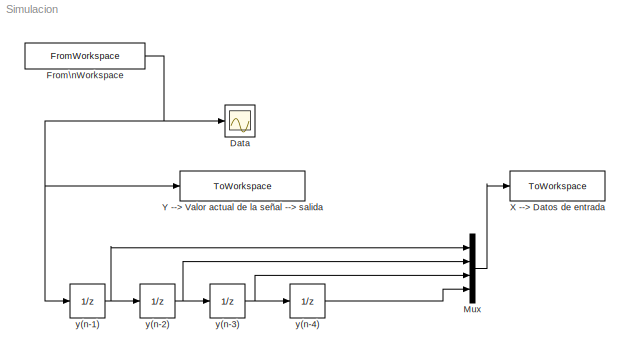
MODEL Simulacion
KIND model
BLOCK [Scope] Data
  Floating = off
  NumInputPorts = 1
  Ports = [1]
  SID = 1
  ScopeSpecificationString = Simulink.scopes.TimeScopeBlockCfg('CurrentConfiguration', extmgr.ConfigurationSet(extmgr.Configuration('Core','General UI',true),extmgr.Configuration('Core','Source UI',true),extmgr.Configuration('Sources','WiredSimulink',true,'DataLoggingSaveFormat','StructureWithTime','DataLoggingLimitDataPoints',true,'DataLoggingDecimation','1','DataLoggingDecimateData',true),extmgr.Configuration('Visuals','Tim...<+1693ch>
BLOCK [FromWorkspace] From\nWorkspace
  SID = 2
  SampleTime = 1
  VariableName = ecgData
  ZeroCross = off
BLOCK [Mux] Mux
  DisplayOption = bar
  Ports = [4, 1]
  SID = 3
BLOCK [ToWorkspace] X  --> Datos de entrada
  MaxDataPoints = inf
  Ports = [1]
  SID = 7
  SampleTime = 1
  VariableName = XECG
BLOCK [ToWorkspace] Y  --> Valor actual de la señal  --> salida
  MaxDataPoints = inf
  Ports = [1]
  SID = 8
  SampleTime = 1
  VariableName = YECG
BLOCK [UnitDelay] y(n-1)
  HasFrameUpgradeWarning = on
  SID = 4
BLOCK [UnitDelay] y(n-2)
  HasFrameUpgradeWarning = on
  SID = 5
BLOCK [UnitDelay] y(n-3)
  HasFrameUpgradeWarning = on
  SID = 6
BLOCK [UnitDelay] y(n-4)
  HasFrameUpgradeWarning = on
  SID = 10
NET From\nWorkspace:1 -> Data:1, Y  --> Valor actual de la señal  --> salida:1, y(n-1):1
LINE Mux:1 -> X  --> Datos de entrada:1
NET y(n-1):1 -> Mux:1, y(n-2):1
NET y(n-2):1 -> Mux:2, y(n-3):1
NET y(n-3):1 -> Mux:3, y(n-4):1
LINE y(n-4):1 -> Mux:4
note: NET lines group one-source signal fan-out (src -> all destinations, sorted); 1:1 wires keep LINE
